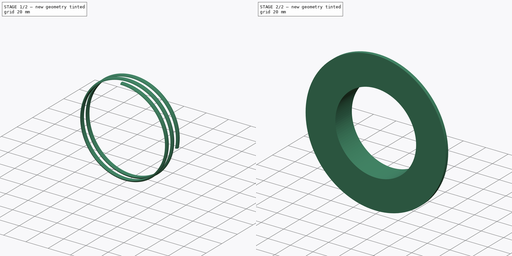
[diagram: build sequence overview — one tinted view per stage of 2, left to right]
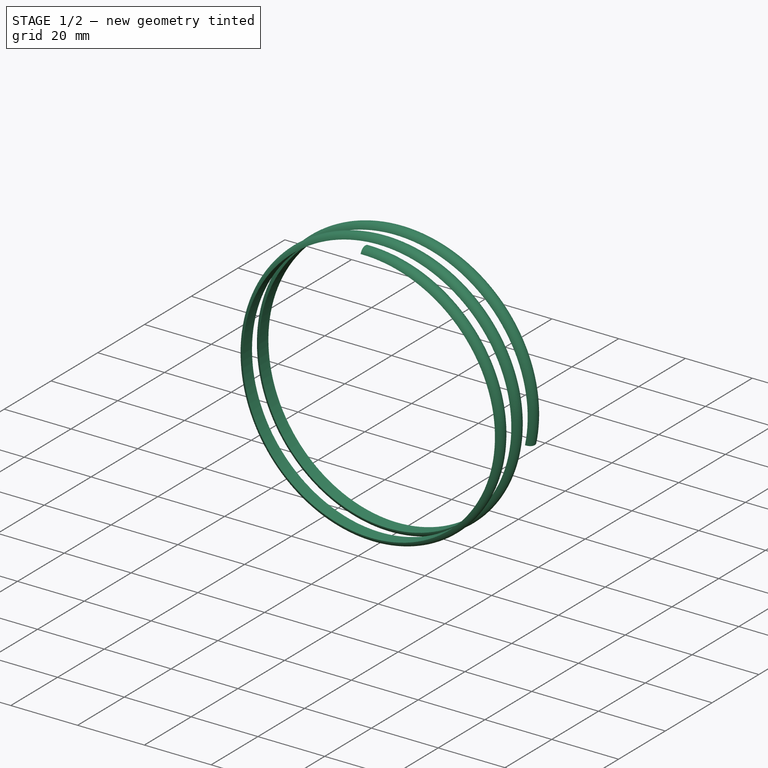
[diagram: stage 1 of 2 — iso view after this stage's code; geometry added in this stage tinted green]
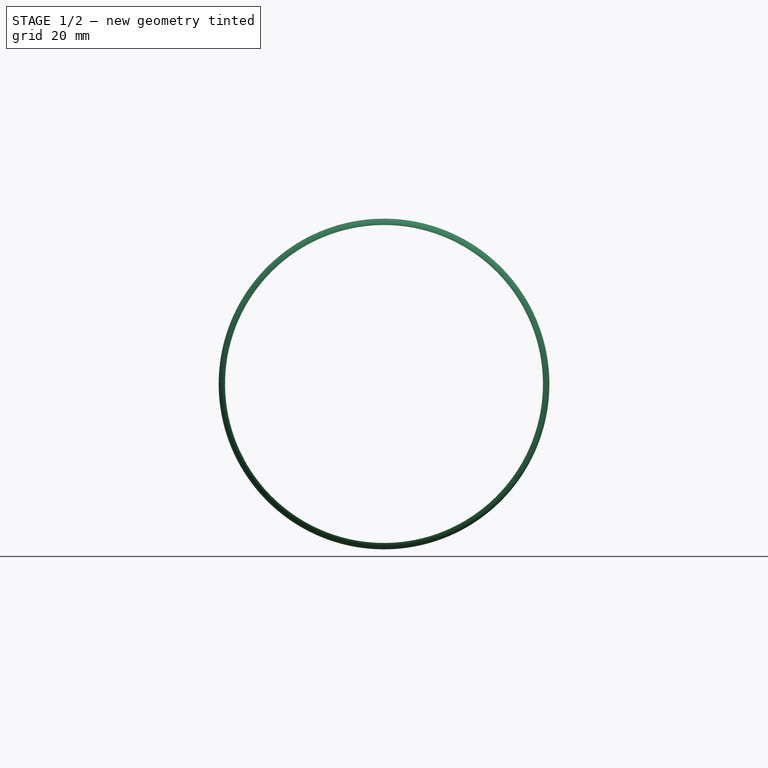
[diagram: stage 1 of 2 — front view after this stage's code; geometry added in this stage tinted green]
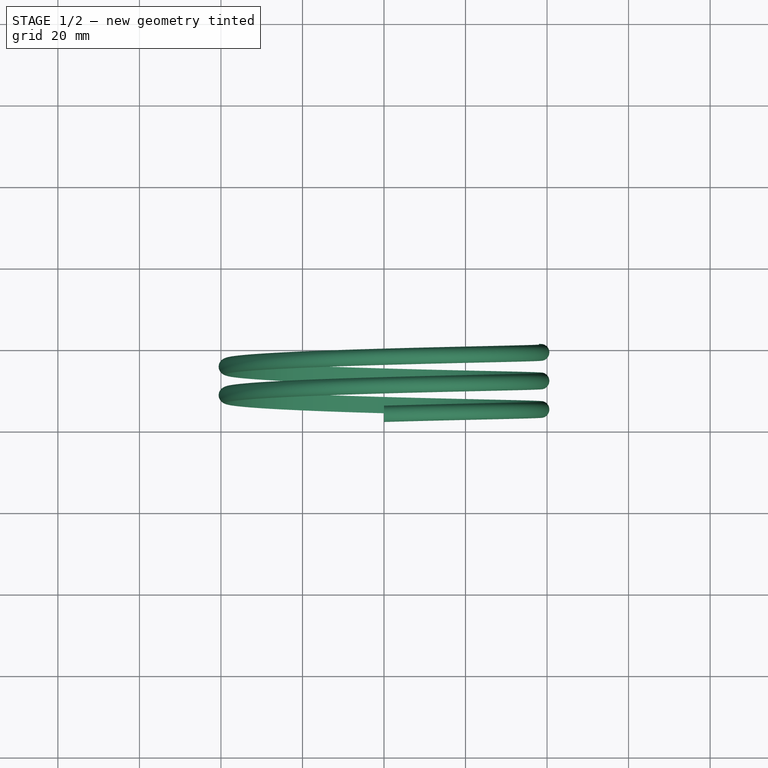
[diagram: stage 1 of 2 — top view after this stage's code; geometry added in this stage tinted green]
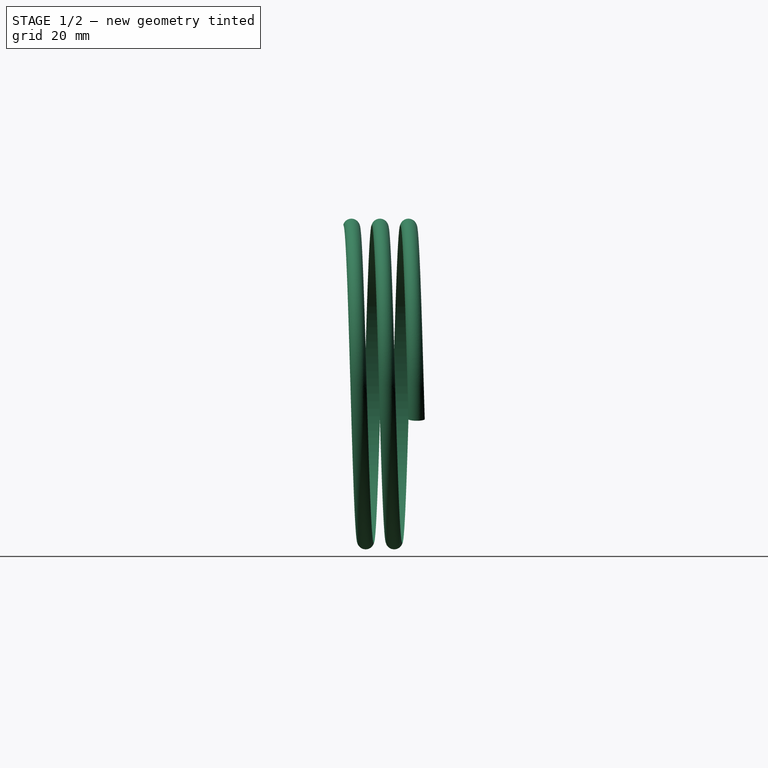
[diagram: stage 1 of 2 — right view after this stage's code; geometry added in this stage tinted green]
FCSTD DOCUMENT  (FreeCAD 0.18R16117 (Git))
Label: Lampe_Schraube
License: All rights reserved
LicenseURL: http://en.wikipedia.org/wiki/All_rights_reserved
objects: Sketcher::SketchObject×2, PartDesign::Revolution×1, PartDesign::Body×1, Part::Helix×1, Part::Sweep×1
note: 7 computed .brp shape members not serialized (recipe doc carries the construction recipe); baked Part::Feature solids carry a one-line shape summary decoded from their .brp

FEATURE [Sketcher::SketchObject] Sketch001  label="Gewinde"
  ExternalGeometry = -> [Sketch]
  MapMode = 5
  Support = -> [XY_Plane]
  sketch-geometry (2):
    g0: ArcOfCircle CenterX=-38.5 CenterY=22.5175 CenterZ=0 NormalX=0 NormalY=0 NormalZ=1 AngleXU=0 Radius=2.06155 StartAngle=1.81577 EndAngle=4.46741
    g1: LineSegment StartX=-39 StartY=24.5175 StartZ=0 EndX=-39 EndY=20.5175 EndZ=0
  constraints (6):
    c: PointOnObject(g0,g-3)
    c: PointOnObject(g0,g-3)
    c: DistanceY(g0,g0) = 4
    c: DistanceX(g0,g0) = 0.5
    c: Coincident(g0,g1)
    c: Coincident(g0,g1)
FEATURE [PartDesign::Body] Body
  Group = -> [Sketch,Revolution,Sketch001]
  Origin = -> Origin
  Tip = -> Revolution
FEATURE [Part::Helix] Helix
  Angle = 0
  AttacherType = Attacher::AttachEngine3D
  Height = 16
  LocalCoord = 0
  Pitch = 7
  Placement = pos=(0,5,0) rot=(0.57735,0.57735,0.57735;4.18879rad)
  Radius = 39
  Style = 1
FEATURE [Part::Sweep] Sweep
  Frenet = true
  Placement = pos=(0,-7.2,0) rot=(0,0,1;0rad)
  Sections = -> [Sketch001]
  Solid = true
  Spine = -> Helix
  Transition = 1
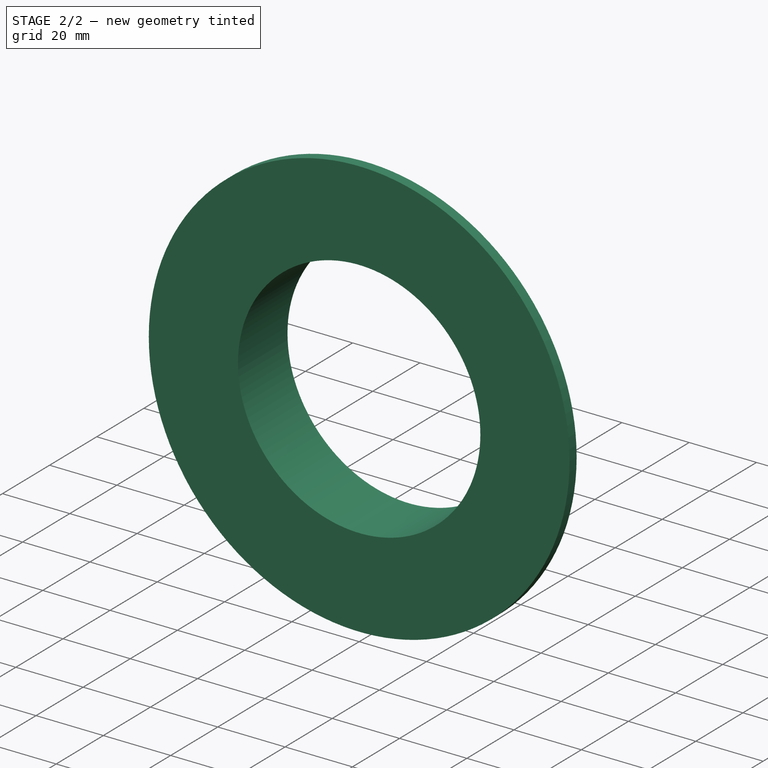
[diagram: stage 2 of 2 — iso view after this stage's code; geometry added in this stage tinted green]
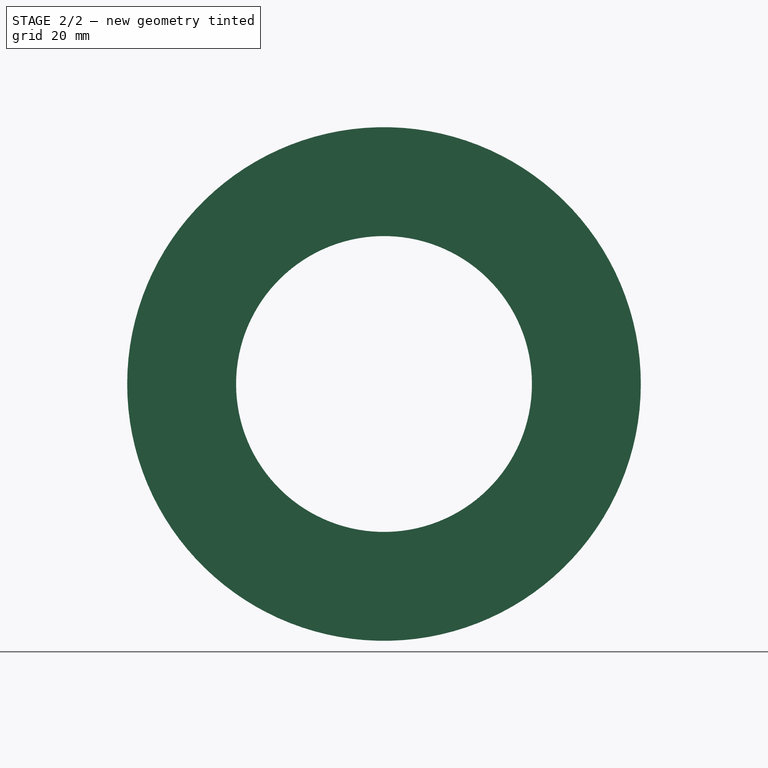
[diagram: stage 2 of 2 — front view after this stage's code; geometry added in this stage tinted green]
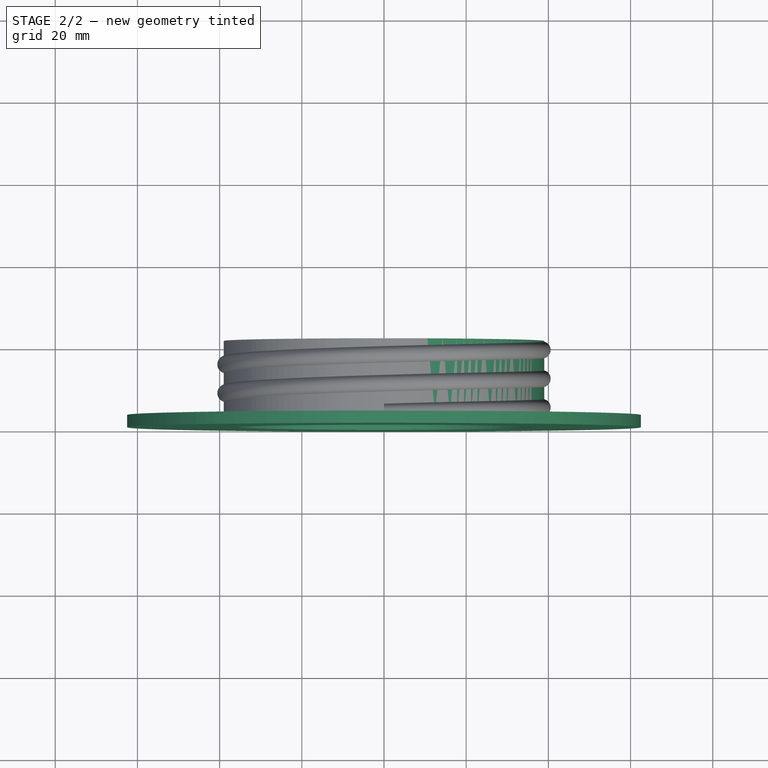
[diagram: stage 2 of 2 — top view after this stage's code; geometry added in this stage tinted green]
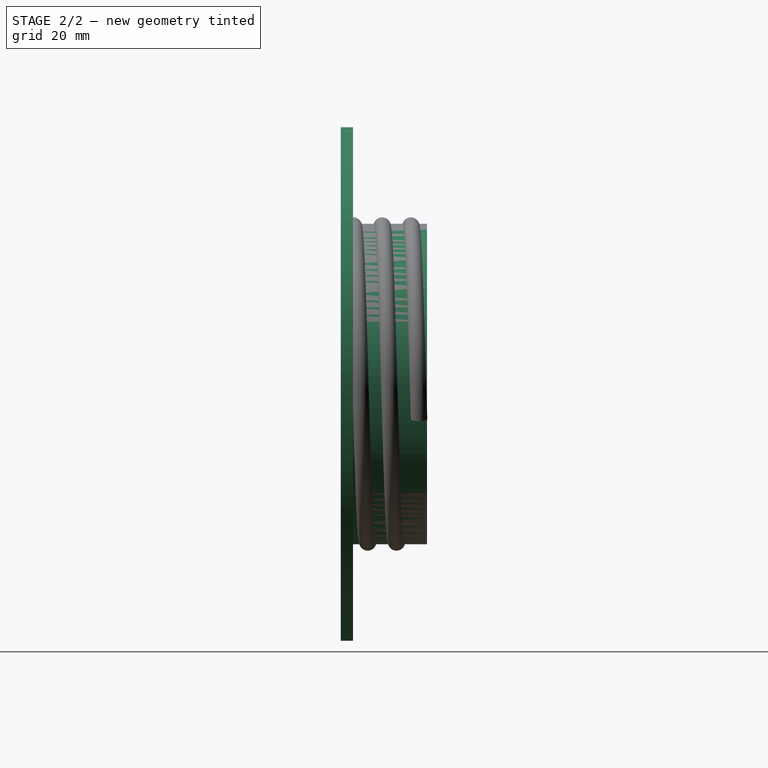
[diagram: stage 2 of 2 — right view after this stage's code; geometry added in this stage tinted green]
FEATURE [Sketcher::SketchObject] Sketch
  MapMode = 5
  Support = -> [XY_Plane]
  expr: Constraints[14] = 78 / 2
  sketch-geometry (6):
    g0: LineSegment StartX=-62.5 StartY=0 StartZ=0 EndX=-62.5 EndY=3 EndZ=0
    g1: LineSegment StartX=-62.5 StartY=3 StartZ=0 EndX=-39 EndY=3 EndZ=0
    g2: LineSegment StartX=-39 StartY=3 StartZ=0 EndX=-39 EndY=21 EndZ=0
    g3: LineSegment StartX=-39 StartY=21 StartZ=0 EndX=-36 EndY=21 EndZ=0
    g4: LineSegment StartX=-36 StartY=21 StartZ=0 EndX=-36 EndY=0 EndZ=0
    g5: LineSegment StartX=-36 StartY=0 StartZ=0 EndX=-62.5 EndY=0 EndZ=0
  constraints (18):
    c: Vertical(g0)
    c: Coincident(g0,g1)
    c: Horizontal(g1)
    c: Coincident(g1,g2)
    c: Vertical(g2)
    c: Coincident(g2,g3)
    c: Horizontal(g3)
    c: Coincident(g3,g4)
    c: Vertical(g4)
    c: Coincident(g4,g5)
    c: Coincident(g5,g0)
    c: Horizontal(g5)
    c: DistanceY(g2,g2) = 18
    c: DistanceX(g0,g-1) = 62.5
    c: DistanceX(g2,g-1) = 39
    c: DistanceX(g3,g-1) = 36
    c: DistanceY(g0,g0) = 3
    c: PointOnObject(g4,g-1)
FEATURE [PartDesign::Revolution] Revolution
  Angle = 360
  Axis = (0,1,0)
  Base = (0,0,0)
  Profile = -> Sketch
  ReferenceAxis = -> Sketch [V_Axis]
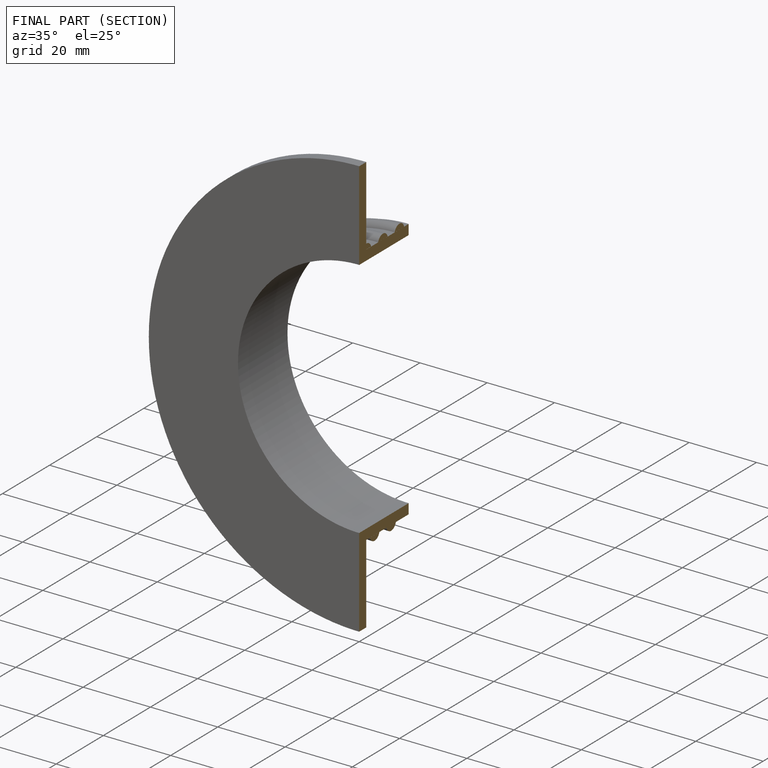
[diagram: finished part — half-section view (interior)]
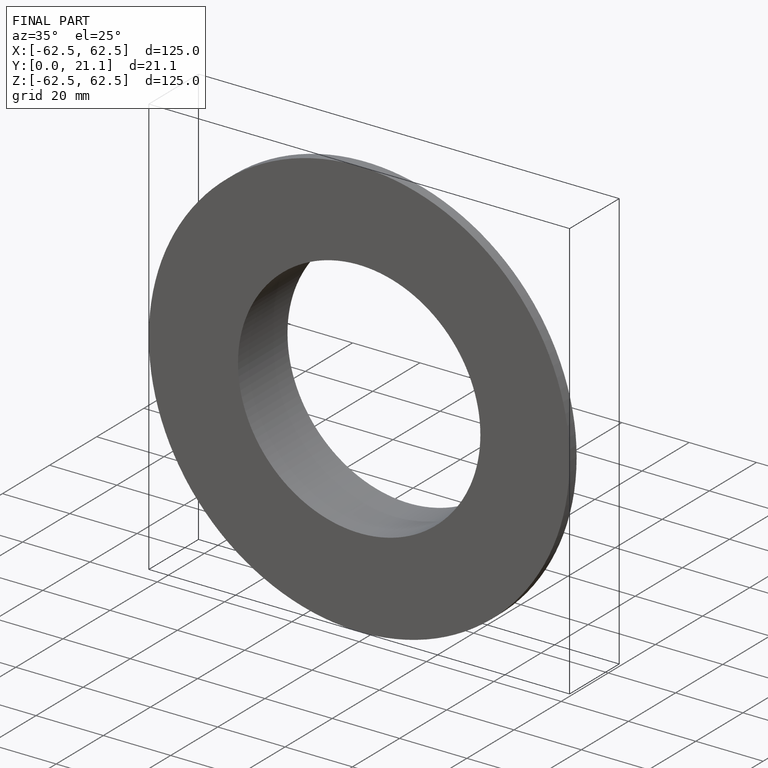
[diagram: finished part — iso view with bounding-box wireframe]
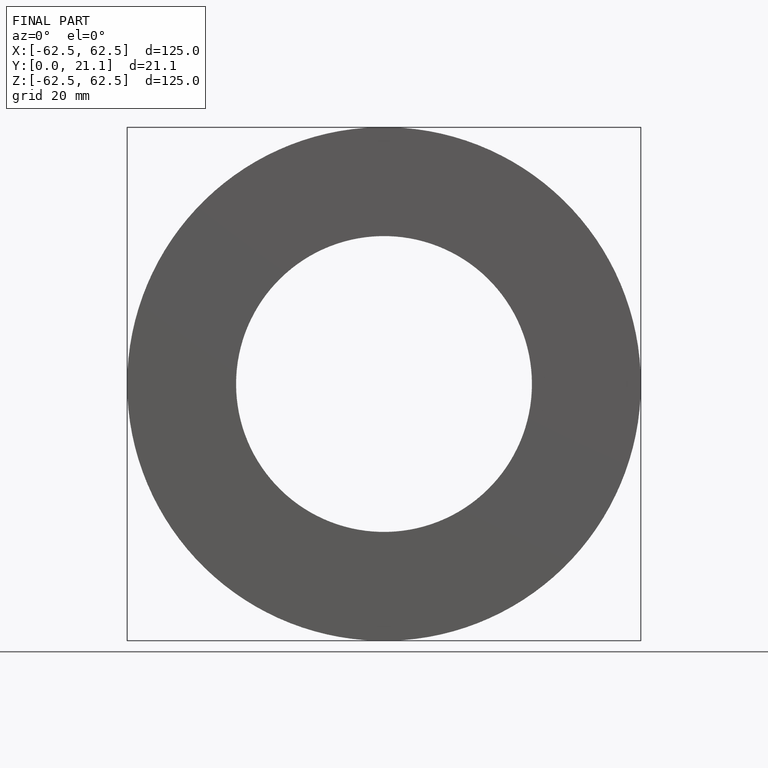
[diagram: finished part — front view with bounding-box wireframe]
